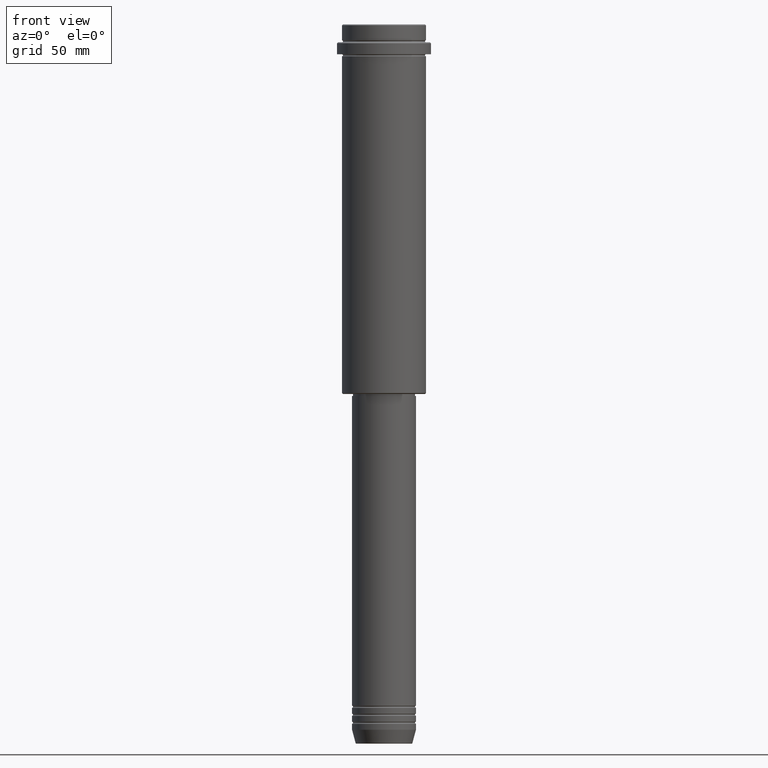
[diagram: clean part render]
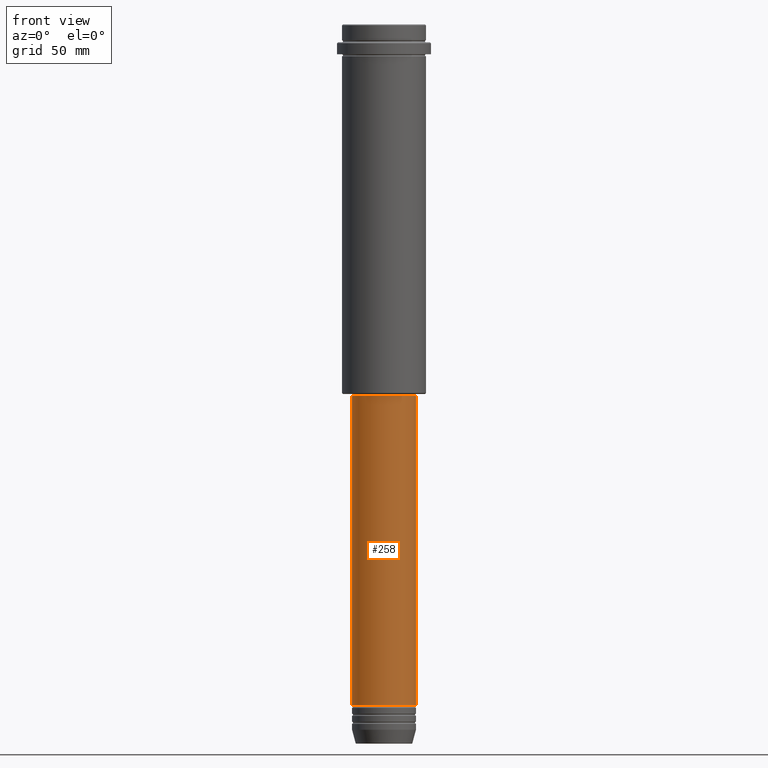
[diagram: same view with one face highlighted and labeled with its STEP entity id]
A machine part, front view. The second image highlights one B-rep face of the part: STEP entity #258.
In plain terms, the highlighted cylindrical surface (edge-blend (fillet) strip) has radius 16 mm, axis along (-0, -0, 1).
Its self-contained STEP definition (entity closure, byte-faithful):
#55 = CARTESIAN_POINT ( 'NONE',  ( 0.000000000000000000, 0.000000000000000000, -185.9999999999999147 ) ) ;
#93 = CIRCLE ( 'NONE', #1136, 16.00000000000000000 ) ;
#167 = EDGE_CURVE ( 'NONE', #1345, #421, #93, .T. ) ;
#200 = VECTOR ( 'NONE', #770, 1000.000000000000000 ) ;
#234 = DIRECTION ( 'NONE',  ( -0.000000000000000000, -0.000000000000000000, 1.000000000000000000 ) ) ;
#258 = ADVANCED_FACE ( 'NONE', ( #903 ), #1004, .T. ) ;
#277 = EDGE_CURVE ( 'NONE', #837, #373, #1335, .T. ) ;
#343 = CARTESIAN_POINT ( 'NONE',  ( 16.00000000000000355, 0.000000000000000000, -185.9999999999999147 ) ) ;
#373 = VERTEX_POINT ( 'NONE', #343 ) ;
#405 = CARTESIAN_POINT ( 'NONE',  ( -16.00000000000000000, 1.959434878635765131E-15, -340.9999999999998863 ) ) ;
#421 = VERTEX_POINT ( 'NONE', #955 ) ;
#444 = VECTOR ( 'NONE', #234, 1000.000000000000000 ) ;
#503 = ORIENTED_EDGE ( 'NONE', *, *, #167, .T. ) ;
#518 = EDGE_CURVE ( 'NONE', #421, #373, #865, .T. ) ;
#520 = DIRECTION ( 'NONE',  ( 1.000000000000000000, 0.000000000000000000, 0.000000000000000000 ) ) ;
#545 = EDGE_CURVE ( 'NONE', #1345, #837, #1295, .T. ) ;
#598 = DIRECTION ( 'NONE',  ( 1.000000000000000000, 0.000000000000000000, 0.000000000000000000 ) ) ;
#618 = DIRECTION ( 'NONE',  ( -0.000000000000000000, -0.000000000000000000, 1.000000000000000000 ) ) ;
#650 = AXIS2_PLACEMENT_3D ( 'NONE', #55, #618, #520 ) ;
#672 = AXIS2_PLACEMENT_3D ( 'NONE', #912, #1245, #598 ) ;
#700 = CARTESIAN_POINT ( 'NONE',  ( 0.000000000000000000, 0.000000000000000000, -340.9999999999998863 ) ) ;
#743 = CARTESIAN_POINT ( 'NONE',  ( -16.00000000000000000, 1.959434878635765131E-15, 0.000000000000000000 ) ) ;
#770 = DIRECTION ( 'NONE',  ( -0.000000000000000000, -0.000000000000000000, 1.000000000000000000 ) ) ;
#837 = VERTEX_POINT ( 'NONE', #1234 ) ;
#865 = LINE ( 'NONE', #1316, #444 ) ;
#886 = ORIENTED_EDGE ( 'NONE', *, *, #277, .F. ) ;
#903 = FACE_OUTER_BOUND ( 'NONE', #1239, .T. ) ;
#912 = CARTESIAN_POINT ( 'NONE',  ( 0.000000000000000000, 0.000000000000000000, 0.000000000000000000 ) ) ;
#955 = CARTESIAN_POINT ( 'NONE',  ( 16.00000000000000000, 0.000000000000000000, -340.9999999999998863 ) ) ;
#1001 = DIRECTION ( 'NONE',  ( 1.000000000000000000, 0.000000000000000000, 0.000000000000000000 ) ) ;
#1004 = CYLINDRICAL_SURFACE ( 'NONE', #672, 16.00000000000000000 ) ;
#1072 = ORIENTED_EDGE ( 'NONE', *, *, #545, .F. ) ;
#1136 = AXIS2_PLACEMENT_3D ( 'NONE', #700, #1320, #1001 ) ;
#1234 = CARTESIAN_POINT ( 'NONE',  ( -16.00000000000000355, 1.959434878635765526E-15, -185.9999999999999147 ) ) ;
#1239 = EDGE_LOOP ( 'NONE', ( #1072, #503, #1362, #886 ) ) ;
#1245 = DIRECTION ( 'NONE',  ( -0.000000000000000000, -0.000000000000000000, 1.000000000000000000 ) ) ;
#1295 = LINE ( 'NONE', #743, #200 ) ;
#1316 = CARTESIAN_POINT ( 'NONE',  ( 16.00000000000000000, 0.000000000000000000, 0.000000000000000000 ) ) ;
#1320 = DIRECTION ( 'NONE',  ( -0.000000000000000000, -0.000000000000000000, 1.000000000000000000 ) ) ;
#1335 = CIRCLE ( 'NONE', #650, 16.00000000000000355 ) ;
#1345 = VERTEX_POINT ( 'NONE', #405 ) ;
#1362 = ORIENTED_EDGE ( 'NONE', *, *, #518, .T. ) ;